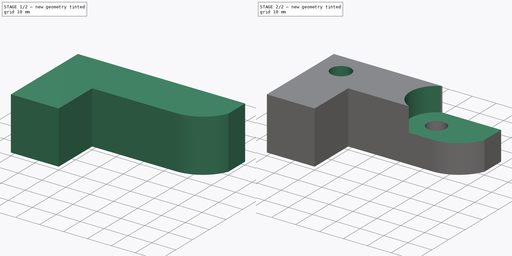
[diagram: build sequence overview — one tinted view per stage of 2, left to right]
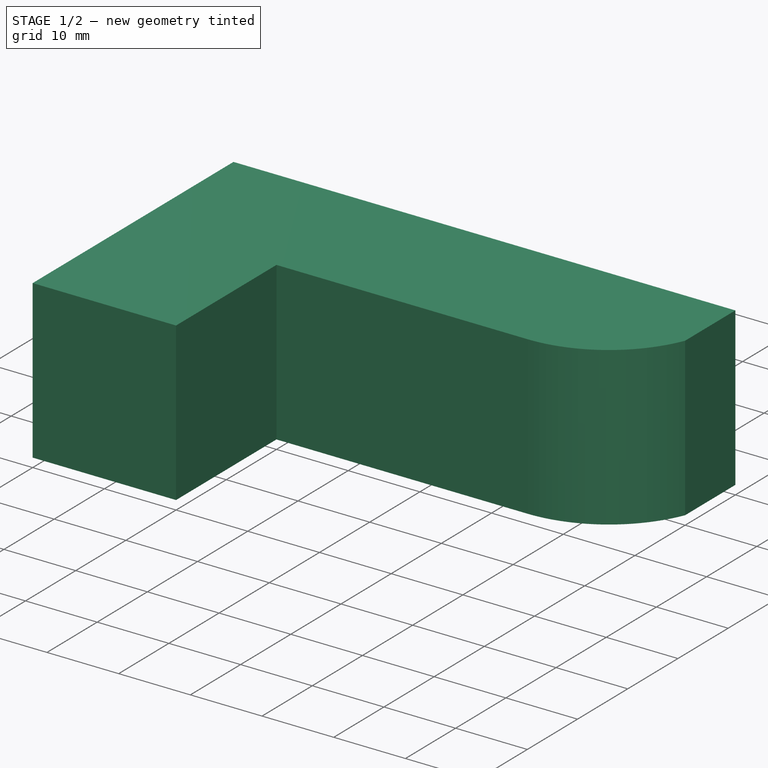
[diagram: stage 1 of 2 — iso view after this stage's code; geometry added in this stage tinted green]
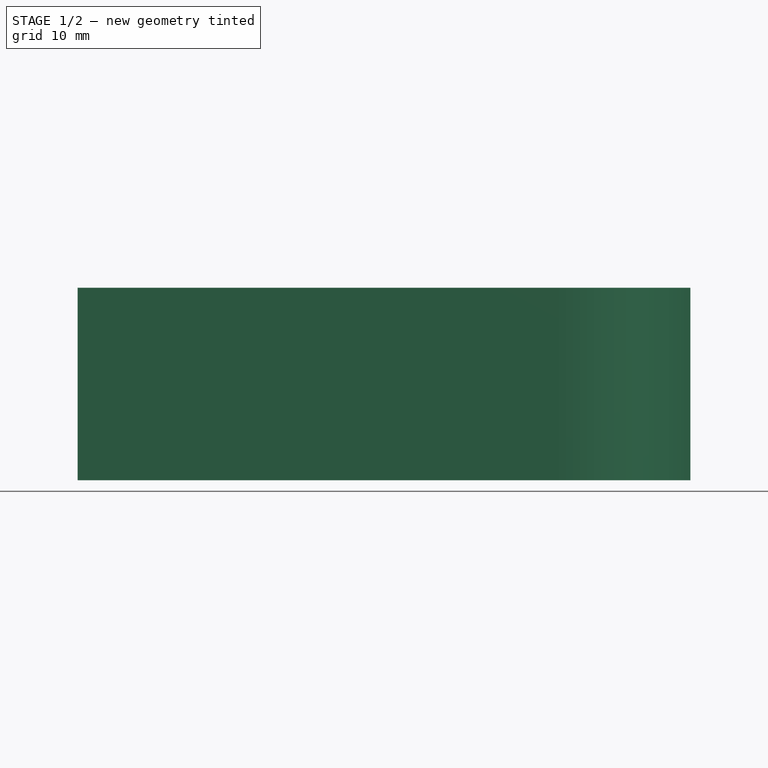
[diagram: stage 1 of 2 — front view after this stage's code; geometry added in this stage tinted green]
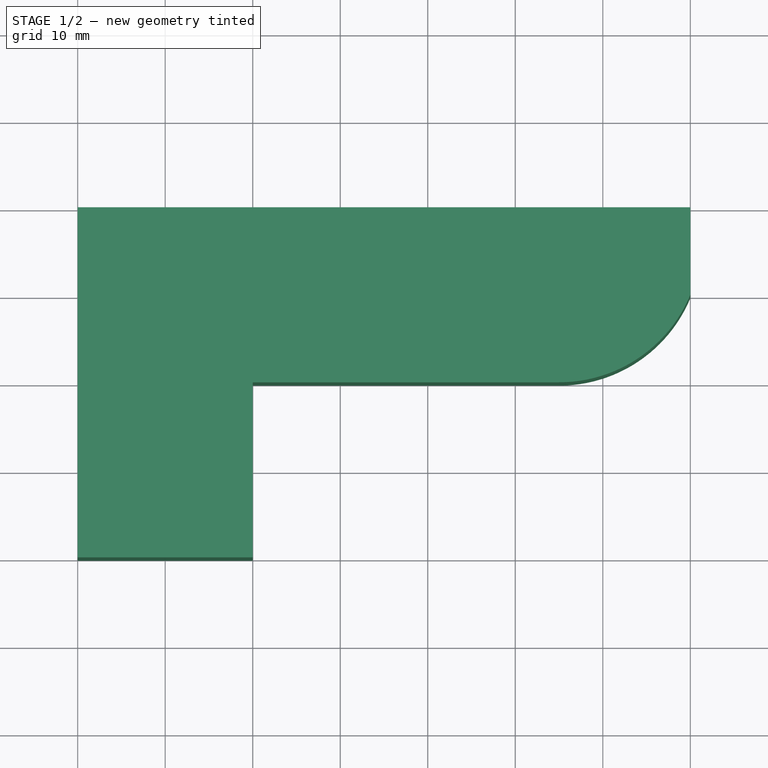
[diagram: stage 1 of 2 — top view after this stage's code; geometry added in this stage tinted green]
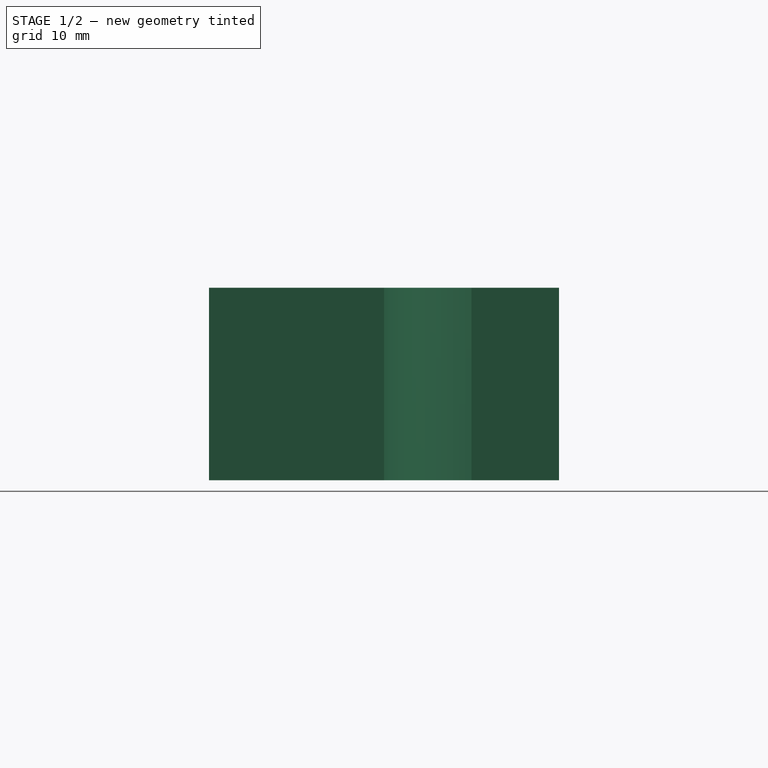
[diagram: stage 1 of 2 — right view after this stage's code; geometry added in this stage tinted green]
FCSTD DOCUMENT  (FreeCAD 0.19R)
Label: sofa_l3
License: All rights reserved
LicenseURL: http://en.wikipedia.org/wiki/All_rights_reserved
objects: Sketcher::SketchObject×4, PartDesign::Pocket×3, PartDesign::Pad×1, PartDesign::Body×1
note: 13 computed .brp shape members not serialized (recipe doc carries the construction recipe); baked Part::Feature solids carry a one-line shape summary decoded from their .brp

FEATURE [Sketcher::SketchObject] Sketch
  FullyConstrained = false
  MapMode = 5
  Support = -> [XY_Plane]
  sketch-geometry (7):
    g0: LineSegment StartX=-10 StartY=10 StartZ=0 EndX=60 EndY=10 EndZ=0
    g1: LineSegment StartX=-10 StartY=10 StartZ=0 EndX=-10 EndY=-30 EndZ=0
    g2: LineSegment StartX=-10 StartY=-30 StartZ=0 EndX=10 EndY=-30 EndZ=0
    g3: LineSegment StartX=10 StartY=-30 StartZ=0 EndX=10 EndY=-10 EndZ=0
    g4: LineSegment StartX=60 StartY=10 StartZ=0 EndX=60 EndY=-2.60307e-11 EndZ=0
    g5: LineSegment StartX=10 StartY=-10 StartZ=0 EndX=45 EndY=-10 EndZ=0
    g6: ArcOfCircle CenterX=45 CenterY=6.25 CenterZ=0 NormalX=0 NormalY=0 NormalZ=1 AngleXU=0 Radius=16.25 StartAngle=4.71239 EndAngle=5.88839
  constraints (21):
    c: Horizontal(g0)
    c: Distance(g0) = 70
    c: Coincident(g1,g0)
    c: Vertical(g1)
    c: Distance(g1) = 40
    c: Coincident(g2,g1)
    c: Horizontal(g2)
    c: Distance(g2) = 20
    c: Vertical(g3)
    c: Distance(g3) = 20
    c: Coincident(g3,g2)
    c: Coincident(g4,g0)
    c: Vertical(g4)
    c: DistanceY(g-1,g0) = 10
    c: DistanceX(g0,g-1) = 10
    c: Distance(g4) = 10
    c: Coincident(g5,g3)
    c: Horizontal(g5)
    c: Distance(g5) = 35
    c: Coincident(g6,g4)
    c: Tangent(g6,g5) = -1.5708
FEATURE [PartDesign::Pad] Pad
  Direction = (0,0,1)
  Length = 22
  Length2 = 100
  Profile = -> Sketch
  Type = 0
FEATURE [Sketcher::SketchObject] Sketch001
  FullyConstrained = false
  MapMode = 5
  Support = -> [XY_Plane]
  sketch-geometry (1):
    g0: Circle CenterX=40 CenterY=0 CenterZ=0 NormalX=0 NormalY=0 NormalZ=1 AngleXU=0 Radius=4
  constraints (3):
    c: PointOnObject(g0,g-1)
    c: Radius(g0) = 4
    c: DistanceX(g-1,g0) = 40
FEATURE [PartDesign::Pocket] Pocket
  BaseFeature = -> Pad
  Length = 20
  Length2 = 100
  Profile = -> Sketch001
  Reversed = true
  Type = 0
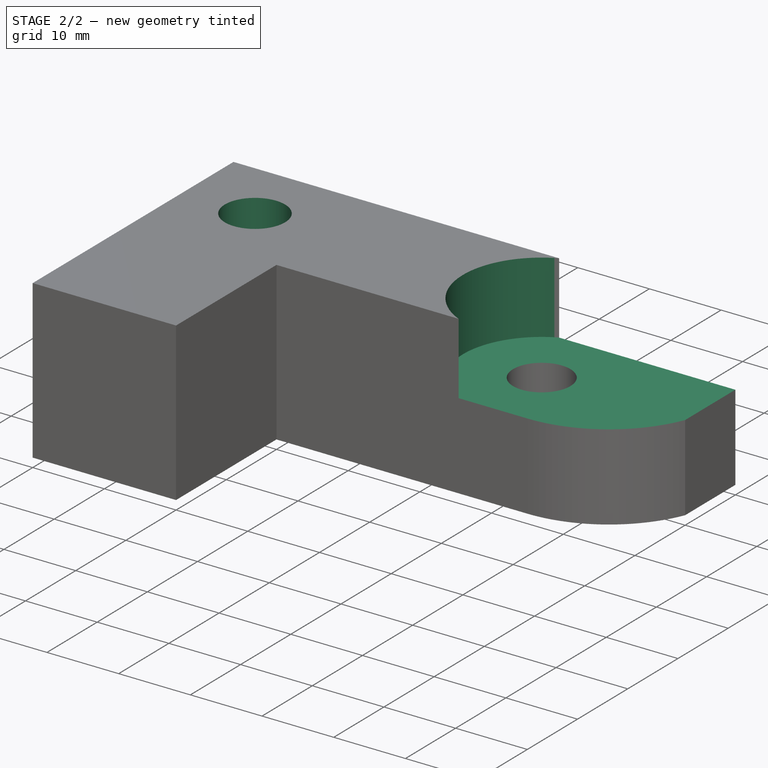
[diagram: stage 2 of 2 — iso view after this stage's code; geometry added in this stage tinted green]
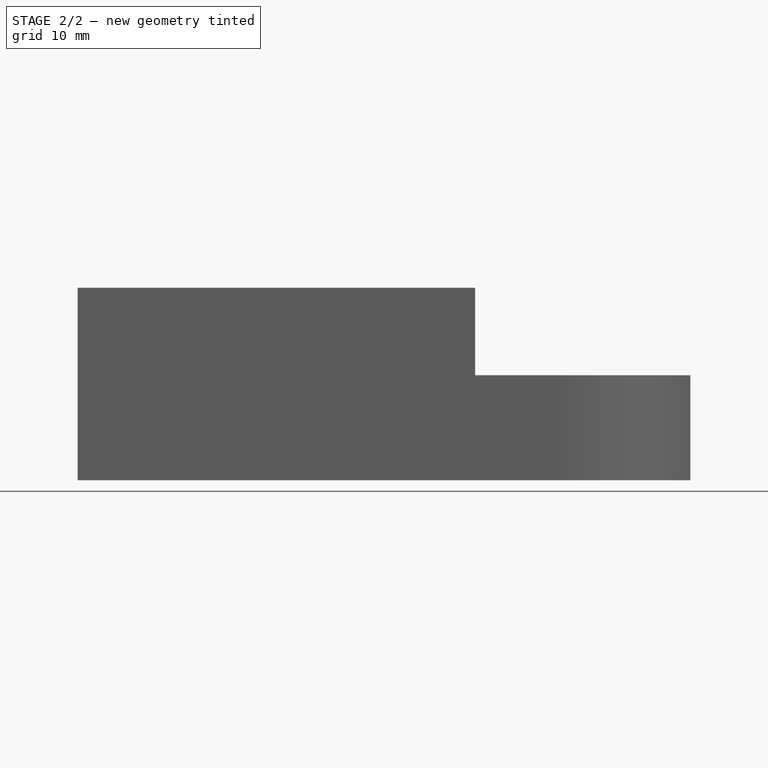
[diagram: stage 2 of 2 — front view after this stage's code; geometry added in this stage tinted green]
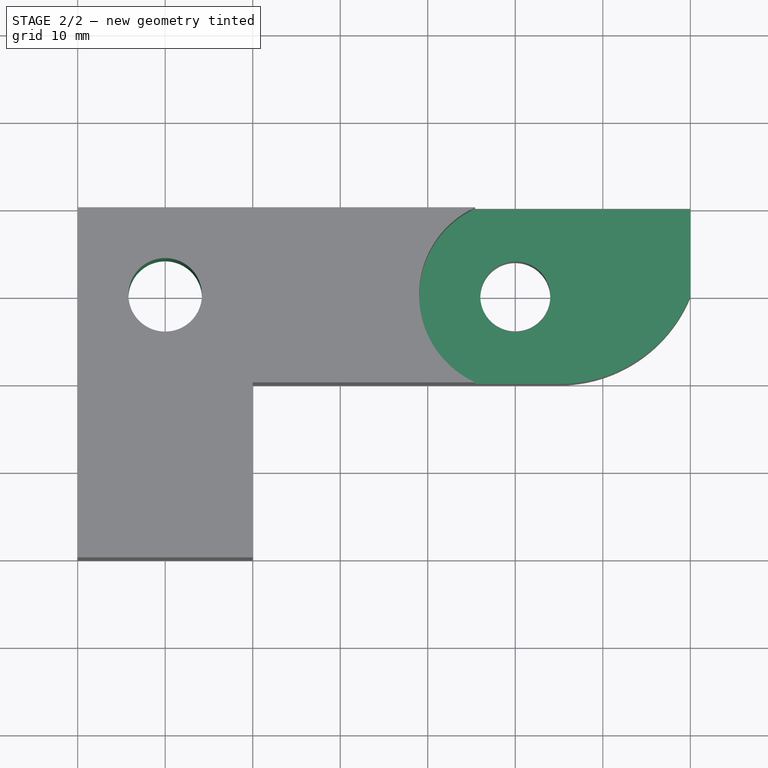
[diagram: stage 2 of 2 — top view after this stage's code; geometry added in this stage tinted green]
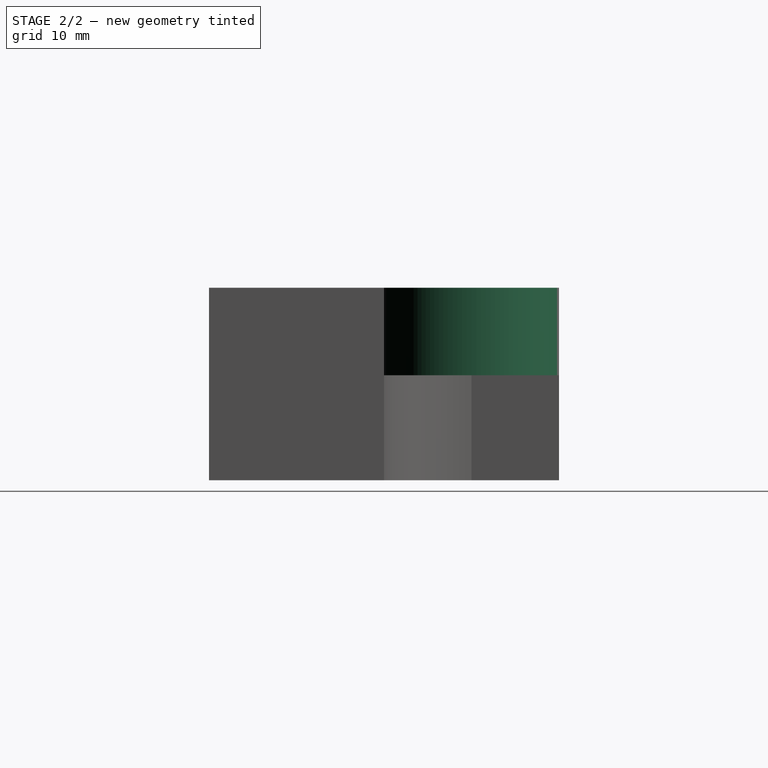
[diagram: stage 2 of 2 — right view after this stage's code; geometry added in this stage tinted green]
FEATURE [Sketcher::SketchObject] Sketch002
  FullyConstrained = true
  MapMode = 5
  Support = -> [XY_Plane]
  sketch-geometry (1):
    g0: Circle CenterX=0 CenterY=0 CenterZ=0 NormalX=0 NormalY=0 NormalZ=1 AngleXU=0 Radius=4.2
  constraints (2):
    c: Coincident(g0,g-1)
    c: Radius(g0) = 4.2
FEATURE [Sketcher::SketchObject] Sketch004
  FullyConstrained = true
  MapMode = 5
  Placement = pos=(0,0,22) rot=(0,0,1;0rad)
  sketch-geometry (5):
    g0: ArcOfCircle CenterX=40 CenterY=0 CenterZ=0 NormalX=0 NormalY=0 NormalZ=1 AngleXU=0 Radius=11 StartAngle=1.5708 EndAngle=4.71239
    g1: LineSegment StartX=40 StartY=11 StartZ=0 EndX=60.1 EndY=11 EndZ=0
    g2: LineSegment StartX=60.1 StartY=11 StartZ=0 EndX=60.1 EndY=5.7518e-12 EndZ=0
    g3: LineSegment StartX=40 StartY=-11 StartZ=0 EndX=45 EndY=-11 EndZ=0
    g4: ArcOfCircle CenterX=45 CenterY=4.86409 CenterZ=0 NormalX=0 NormalY=0 NormalZ=1 AngleXU=0 Radius=15.8641 StartAngle=4.71239 EndAngle=5.97156
  constraints (14):
    c: PointOnObject(g0,g-1)
    c: DistanceX(g-1,g0) = 40
    c: DistanceY(g0,g0) = 11
    c: Horizontal(g1)
    c: Distance(g1) = 20.1
    c: Coincident(g2,g1)
    c: PointOnObject(g2,g-1)
    c: Vertical(g2)
    c: Horizontal(g3)
    c: Distance(g3) = 5
    c: Coincident(g4,g2)
    c: Tangent(g4,g3) = -1.5708
    c: Tangent(g1,g0) = 1.5708
    c: Tangent(g3,g0) = -1.5708
FEATURE [PartDesign::Pocket] Pocket001
  BaseFeature = -> Pocket
  Length = 10
  Length2 = 100
  Profile = -> Sketch004
  Type = 0
FEATURE [PartDesign::Pocket] Pocket002
  BaseFeature = -> Pocket001
  Length = 22
  Length2 = 100
  Profile = -> Sketch002
  Reversed = true
  Type = 0
FEATURE [PartDesign::Body] Body
  Group = -> [Sketch,Pad,Sketch001,Pocket,Sketch002,Sketch004,Pocket001,Pocket002]
  Origin = -> Origin
  Tip = -> Pocket002
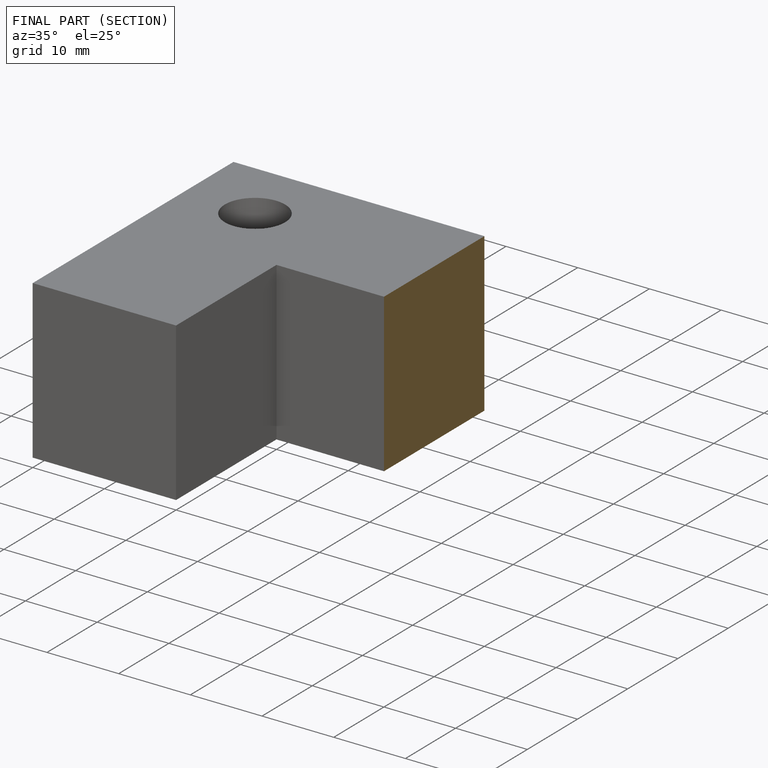
[diagram: finished part — half-section view (interior)]
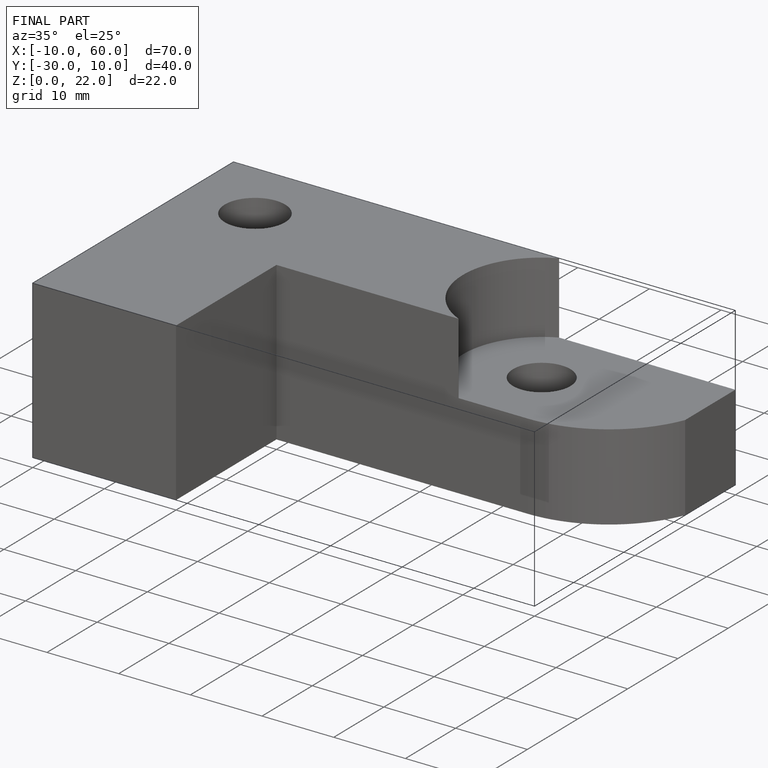
[diagram: finished part — iso view with bounding-box wireframe]
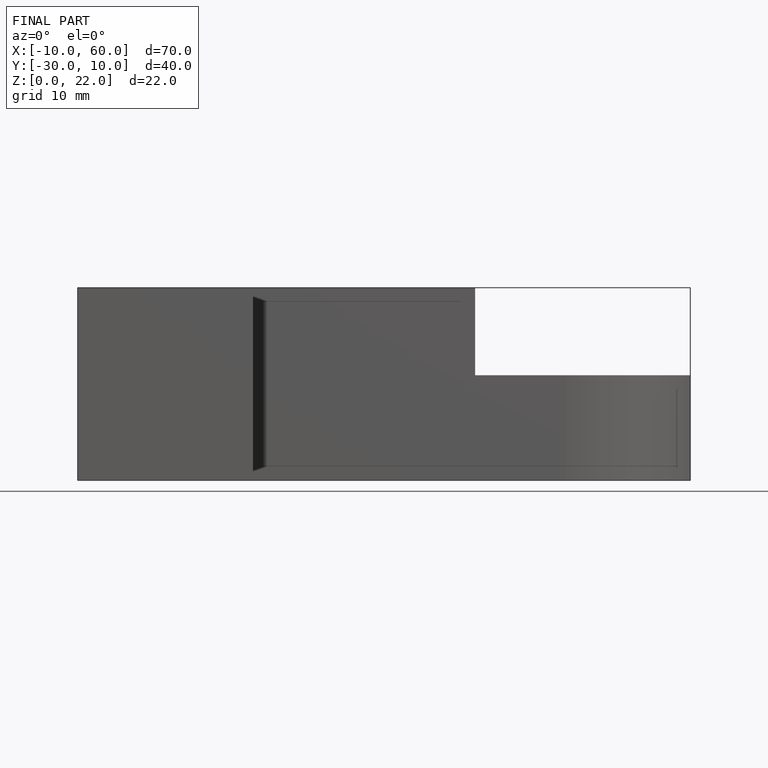
[diagram: finished part — front view with bounding-box wireframe]
